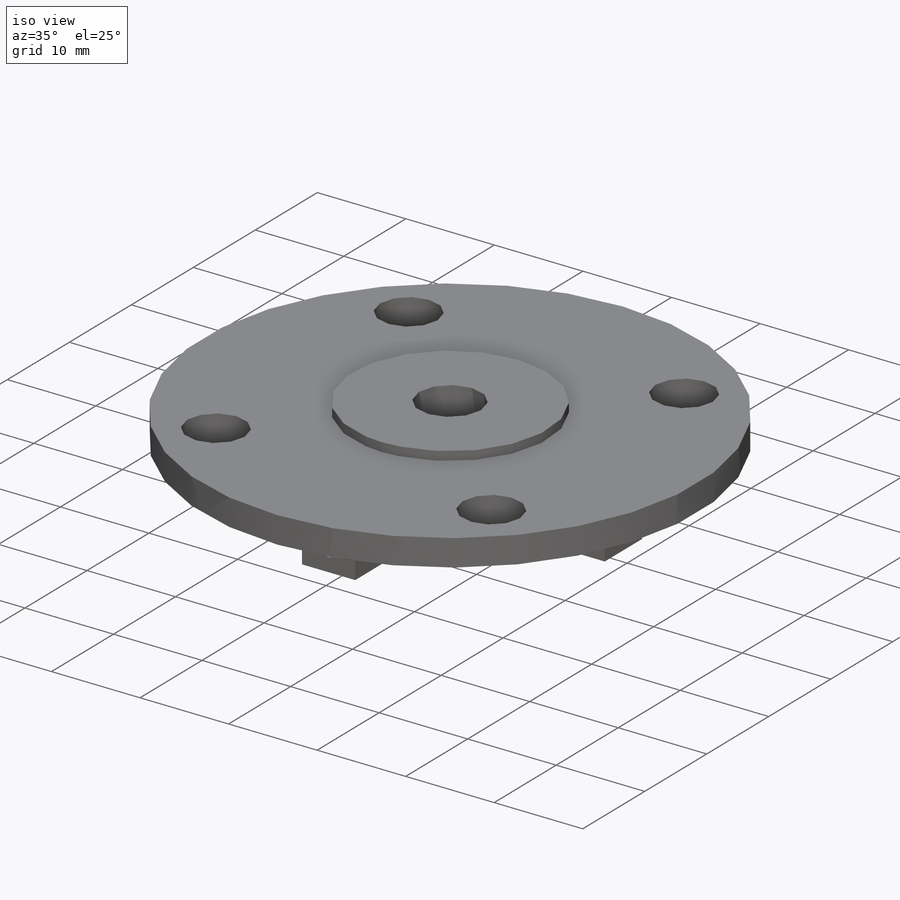
[diagram: iso view]
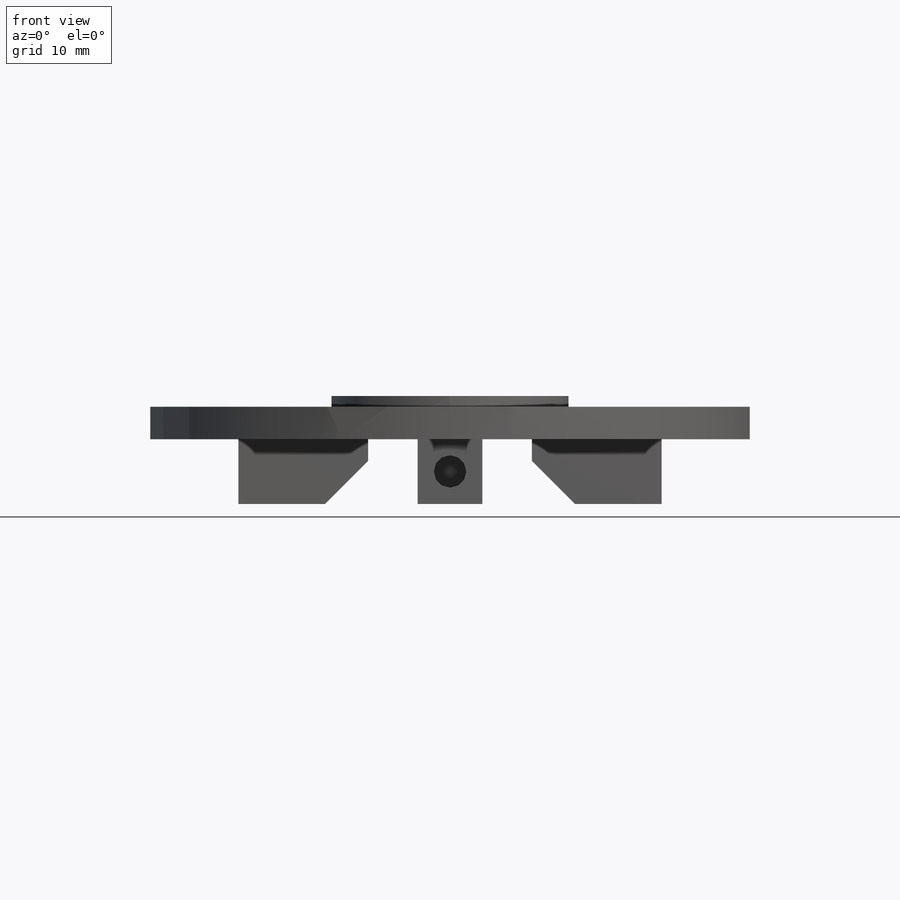
[diagram: front view]
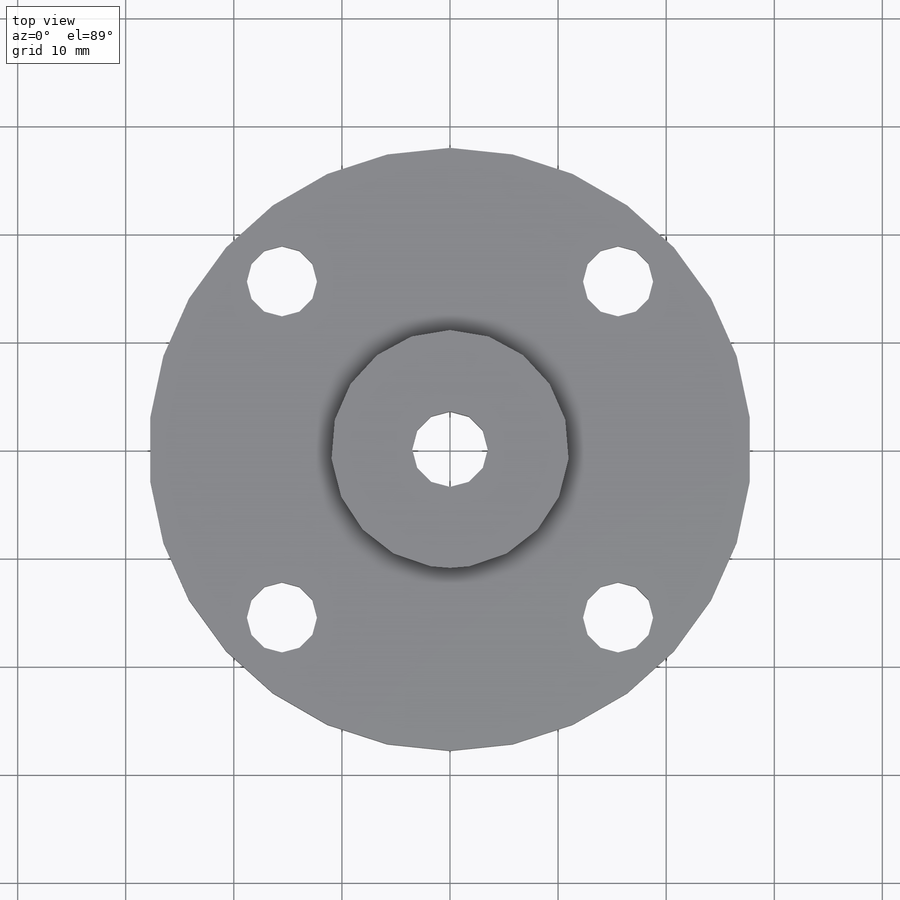
[diagram: top view]
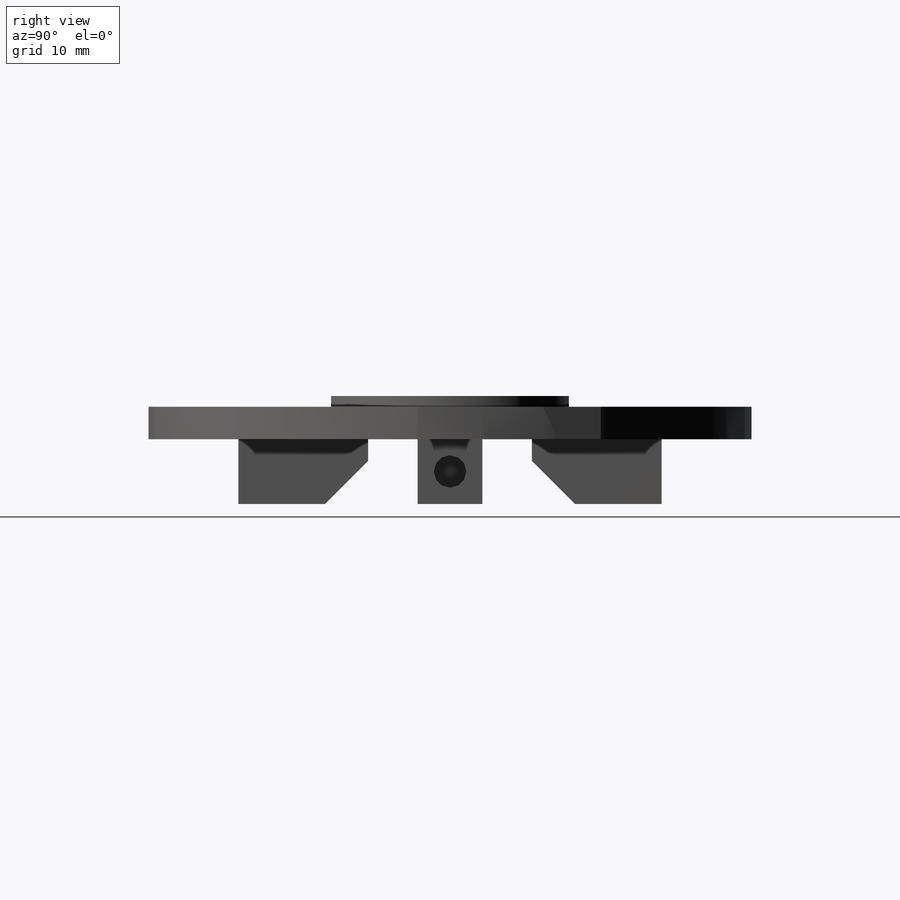
[diagram: right view]
SOLIDWORKS PART (.sldprt)
format: sldprt  version: not decoded by parser v0  size: 255,488 bytes
history: native  units: mm
features: sketch x4, extrude x3, material x1, chamfer x1, cut_extrude x1, pattern_circular x1 (+13 scaffold rows collapsed)
feature tree (24):
  scaffold x13  (default folders/planes/origin — collapsed)
  material  "Material <not specified>"
  sketch  "Sketch1"  dims[D2=6.5mm D3=7.0mm D1=31.1mm]
  extrude  "Boss-Extrude1"  Depth=3mm
  extrude  "Boss-Extrude2"  [1 undecoded]
  sketch  "Sketch1<5>"  dims[D1=1.0mm]
  sketch  "Sketch2"  dims[D1=12.0mm D2=6.0mm]
  extrude  "Boss-Extrude3"  Depth=6mm
  chamfer  "Chamfer1"  Distance=4mm Angle=45deg
  sketch  "Sketch3"  dims[D1=3.0mm]
  cut_extrude  "Cut-Extrude1"  Depth=6mm
  pattern_circular  "CirPattern1"  Count=4  [1 undecoded]
decode coverage: 9 of 10 modeling features carry decoded parameters
note: 2 parameter values undecoded
note: suppression state not decoded; provenance and decode notes live in map.json
